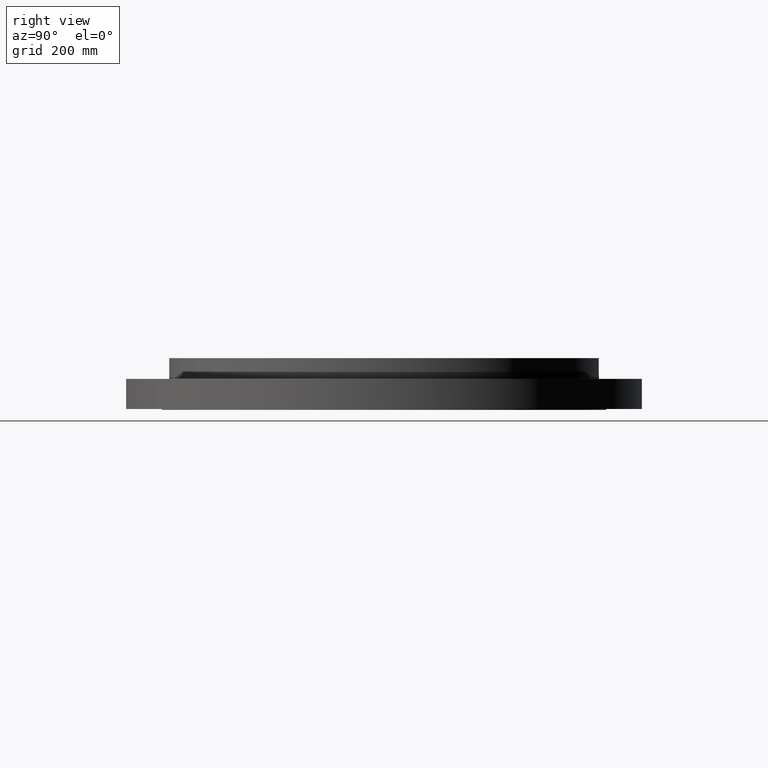
[diagram: clean part render]
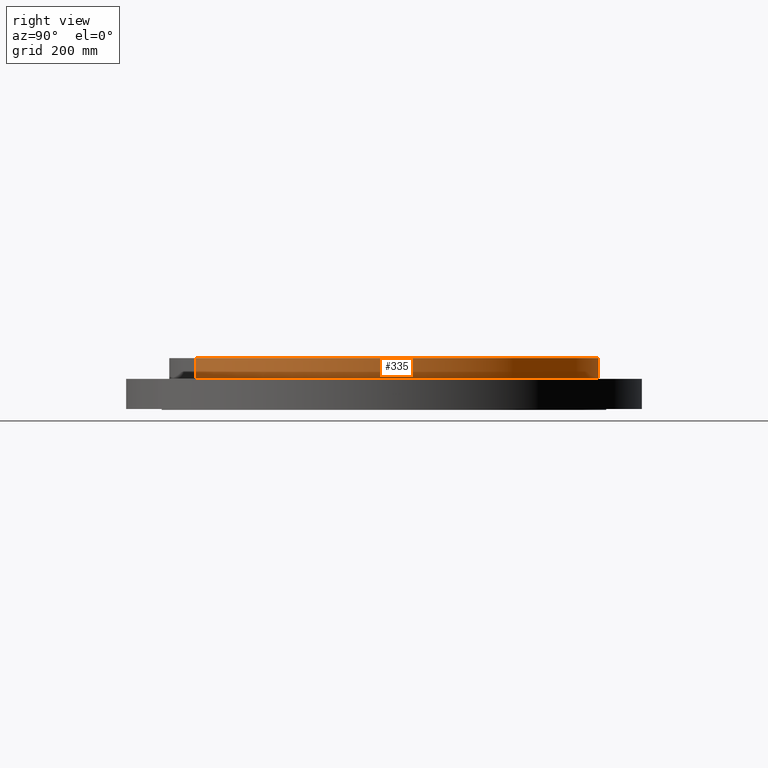
[diagram: same view with one face highlighted and labeled with its STEP entity id]
A machine part, right view. The second image highlights one B-rep face of the part: STEP entity #335.
In plain terms, the highlighted cylindrical surface (partial cylindrical patch) has radius 361.95 mm, axis along (0, 0, 1).
Its self-contained STEP definition (entity closure, byte-faithful):
#284=AXIS2_PLACEMENT_3D('Circle Axis2P3D',#282,#283,$) ;
#308=AXIS2_PLACEMENT_3D('Cylinder Axis2P3D',#305,#306,#307) ;
#326=AXIS2_PLACEMENT_3D('Circle Axis2P3D',#324,#325,$) ;
#282=CARTESIAN_POINT('Axis2P3D Location',(0.,0.,3.37500000001)) ;
#286=CARTESIAN_POINT('Vertex',(6.83181392514,-12.505551507,3.37500000001)) ;
#288=CARTESIAN_POINT('Vertex',(-6.83181392514,12.505551507,3.37500000001)) ;
#305=CARTESIAN_POINT('Axis2P3D Location',(0.,0.,1.65625000001)) ;
#310=CARTESIAN_POINT('Line Origine',(-6.83181392514,12.505551507,2.68750000001)) ;
#314=CARTESIAN_POINT('Vertex',(-6.83181392514,12.505551507,2.00000000001)) ;
#317=CARTESIAN_POINT('Line Origine',(6.83181392514,-12.505551507,2.68750000001)) ;
#321=CARTESIAN_POINT('Vertex',(6.83181392514,-12.505551507,2.00000000001)) ;
#324=CARTESIAN_POINT('Axis2P3D Location',(0.,0.,2.00000000001)) ;
#283=DIRECTION('Axis2P3D Direction',(0.,0.,0.0393700787402)) ;
#306=DIRECTION('Axis2P3D Direction',(0.,0.,0.0393700787402)) ;
#307=DIRECTION('Axis2P3D XDirection',(-0.0188750212049,0.0345504945626,0.)) ;
#311=DIRECTION('Vector Direction',(0.,0.,0.0393700787402)) ;
#318=DIRECTION('Vector Direction',(0.,0.,0.0393700787402)) ;
#325=DIRECTION('Axis2P3D Direction',(0.,0.,0.0393700787402)) ;
#312=VECTOR('Line Direction',#311,0.0393700787402) ;
#319=VECTOR('Line Direction',#318,0.0393700787402) ;
#330=ORIENTED_EDGE('',*,*,#316,.T.) ;
#331=ORIENTED_EDGE('',*,*,#290,.F.) ;
#332=ORIENTED_EDGE('',*,*,#323,.F.) ;
#333=ORIENTED_EDGE('',*,*,#328,.T.) ;
#335=ADVANCED_FACE('PartBody',(#334),#309,.T.) ;
#285=CIRCLE('generated circle',#284,14.2500000001) ;
#327=CIRCLE('generated circle',#326,14.2500000001) ;
#309=CYLINDRICAL_SURFACE('generated cylinder',#308,14.2500000001) ;
#290=EDGE_CURVE('',#287,#289,#285,.T.) ;
#316=EDGE_CURVE('',#315,#289,#313,.T.) ;
#323=EDGE_CURVE('',#322,#287,#320,.T.) ;
#328=EDGE_CURVE('',#322,#315,#327,.T.) ;
#329=EDGE_LOOP('',(#330,#331,#332,#333)) ;
#334=FACE_OUTER_BOUND('',#329,.T.) ;
#313=LINE('Line',#310,#312) ;
#320=LINE('Line',#317,#319) ;
#287=VERTEX_POINT('',#286) ;
#289=VERTEX_POINT('',#288) ;
#315=VERTEX_POINT('',#314) ;
#322=VERTEX_POINT('',#321) ;